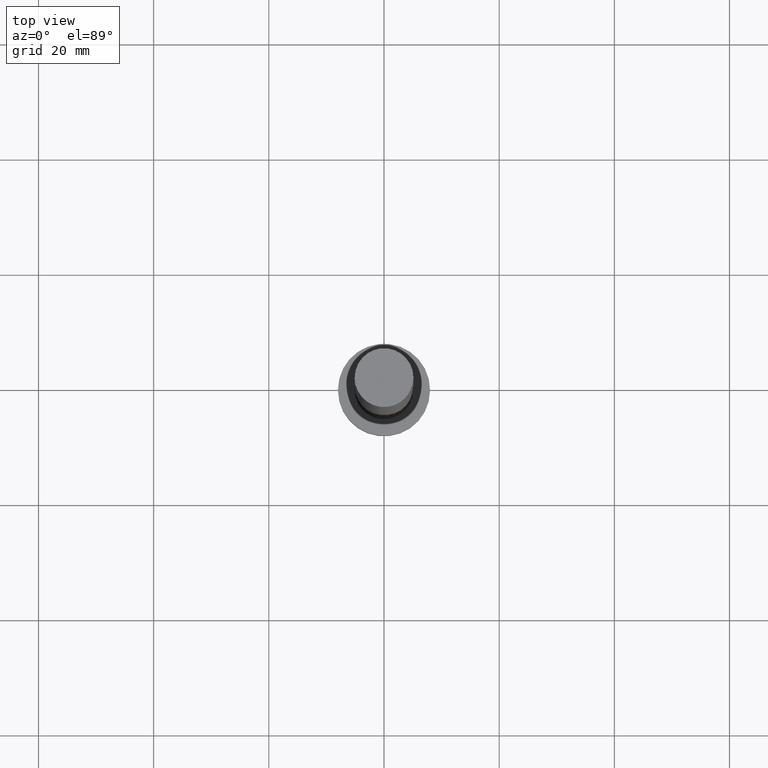
[diagram: clean part render]
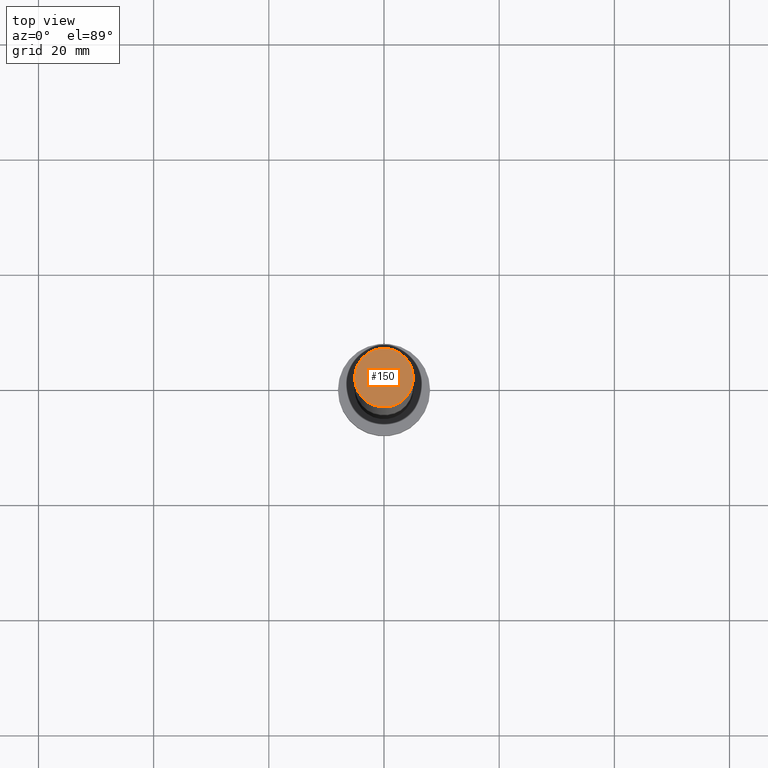
[diagram: same view with one face highlighted and labeled with its STEP entity id]
A machine part, top view. The second image highlights one B-rep face of the part: STEP entity #150.
In plain terms, the highlighted planar face has unit normal (0, 0, 1).
Its self-contained STEP definition (entity closure, byte-faithful):
#2 = DIRECTION ( 'NONE',  ( 1.000000000000000000, 0.000000000000000000, 0.000000000000000000 ) ) ;
#11 = CIRCLE ( 'NONE', #68, 5.100000000000001421 ) ;
#13 = VERTEX_POINT ( 'NONE', #98 ) ;
#23 = ORIENTED_EDGE ( 'NONE', *, *, #154, .T. ) ;
#41 = CARTESIAN_POINT ( 'NONE',  ( -5.100000000000001421, 0.000000000000000000, 125.0000000000000000 ) ) ;
#46 = CARTESIAN_POINT ( 'NONE',  ( 0.000000000000000000, 0.000000000000000000, 125.0000000000000000 ) ) ;
#55 = ORIENTED_EDGE ( 'NONE', *, *, #239, .T. ) ;
#56 = EDGE_LOOP ( 'NONE', ( #23, #55 ) ) ;
#68 = AXIS2_PLACEMENT_3D ( 'NONE', #89, #105, #184 ) ;
#70 = CARTESIAN_POINT ( 'NONE',  ( 0.000000000000000000, 0.000000000000000000, 125.0000000000000000 ) ) ;
#72 = AXIS2_PLACEMENT_3D ( 'NONE', #70, #160, #2 ) ;
#89 = CARTESIAN_POINT ( 'NONE',  ( 0.000000000000000000, 0.000000000000000000, 125.0000000000000000 ) ) ;
#98 = CARTESIAN_POINT ( 'NONE',  ( 5.100000000000001421, 6.245698675651502811E-16, 125.0000000000000000 ) ) ;
#103 = FACE_OUTER_BOUND ( 'NONE', #56, .T. ) ;
#105 = DIRECTION ( 'NONE',  ( 0.000000000000000000, 0.000000000000000000, 1.000000000000000000 ) ) ;
#107 = VERTEX_POINT ( 'NONE', #41 ) ;
#117 = AXIS2_PLACEMENT_3D ( 'NONE', #46, #182, #178 ) ;
#143 = PLANE ( 'NONE',  #117 ) ;
#150 = ADVANCED_FACE ( 'NONE', ( #103 ), #143, .T. ) ;
#154 = EDGE_CURVE ( 'NONE', #107, #13, #255, .T. ) ;
#160 = DIRECTION ( 'NONE',  ( 0.000000000000000000, 0.000000000000000000, 1.000000000000000000 ) ) ;
#178 = DIRECTION ( 'NONE',  ( 1.000000000000000000, 0.000000000000000000, -0.000000000000000000 ) ) ;
#182 = DIRECTION ( 'NONE',  ( 0.000000000000000000, 0.000000000000000000, 1.000000000000000000 ) ) ;
#184 = DIRECTION ( 'NONE',  ( 1.000000000000000000, 0.000000000000000000, 0.000000000000000000 ) ) ;
#239 = EDGE_CURVE ( 'NONE', #13, #107, #11, .T. ) ;
#255 = CIRCLE ( 'NONE', #72, 5.100000000000001421 ) ;